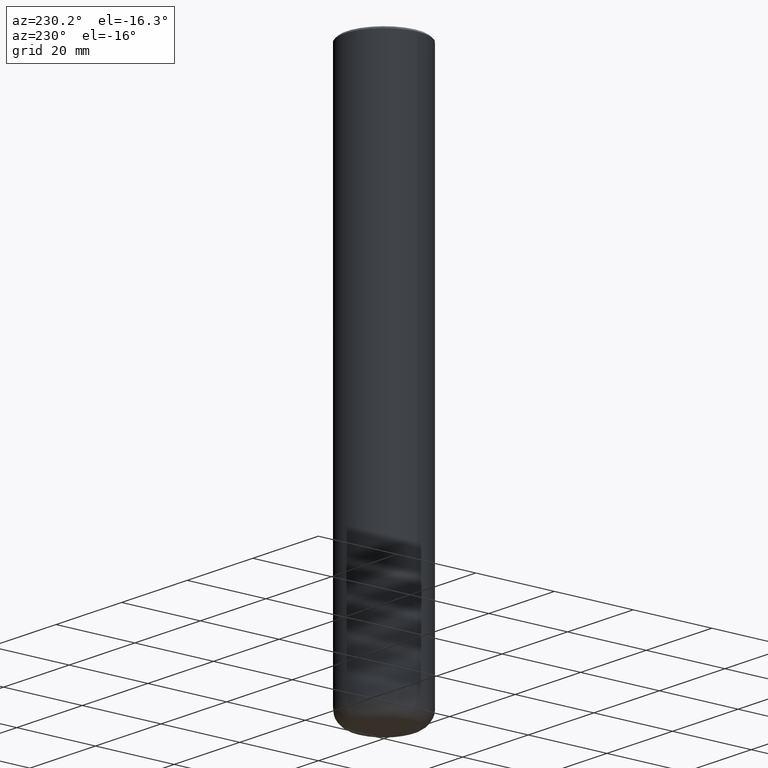
[diagram: clean part render]
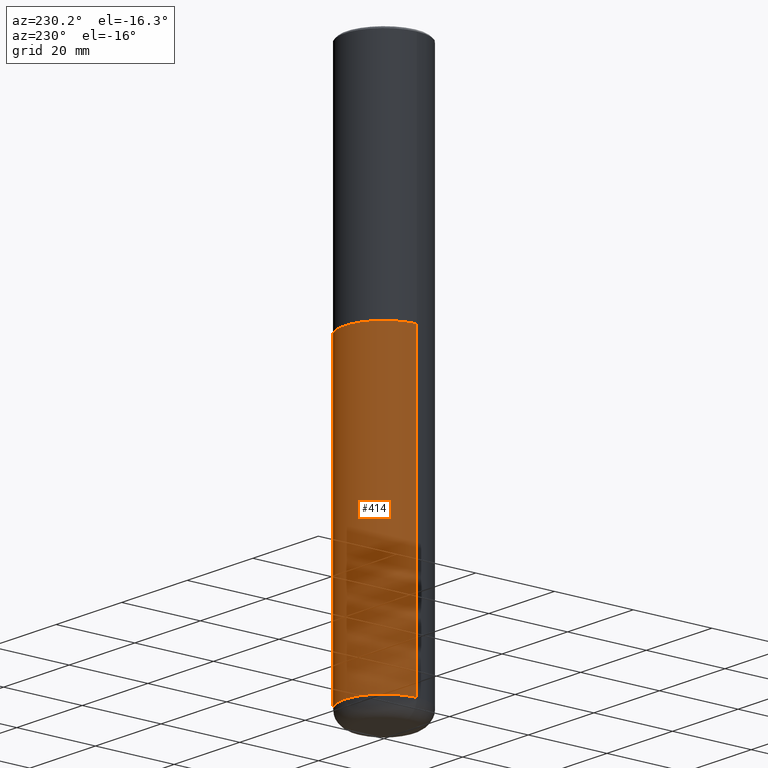
[diagram: same view with one face highlighted and labeled with its STEP entity id]
A machine part, auxiliary view. The second image highlights one B-rep face of the part: STEP entity #414.
In plain terms, the highlighted cylindrical surface (partial cylindrical patch) has radius 10 mm, axis along (-0, 0, 1).
Its self-contained STEP definition (entity closure, byte-faithful):
#9 = VERTEX_POINT ( 'NONE', #107 ) ;
#23 = CARTESIAN_POINT ( 'NONE',  ( -0.3937000000000001054, 2.797406750687515181E-15, -1.936584745033357016E-29 ) ) ;
#27 = CARTESIAN_POINT ( 'NONE',  ( 5.776686413970529753E-29, -8.247577218615279626E-15, -2.362200000000000077 ) ) ;
#28 = EDGE_CURVE ( 'NONE', #9, #357, #294, .T. ) ;
#34 = EDGE_LOOP ( 'NONE', ( #251, #330, #381, #363 ) ) ;
#39 = DIRECTION ( 'NONE',  ( -2.445468806185136877E-29, 3.491481338843145188E-15, 1.000000000000000000 ) ) ;
#48 = AXIS2_PLACEMENT_3D ( 'NONE', #145, #147, #348 ) ;
#94 = DIRECTION ( 'NONE',  ( -2.445468806185136597E-29, 3.491481338843145583E-15, 1.000000000000000000 ) ) ;
#107 = CARTESIAN_POINT ( 'NONE',  ( 0.3936999999999999389, -2.144363093877293707E-14, -5.354300000000000281 ) ) ;
#109 = AXIS2_PLACEMENT_3D ( 'NONE', #27, #155, #216 ) ;
#118 = LINE ( 'NONE', #23, #337 ) ;
#120 = DIRECTION ( 'NONE',  ( -2.445468806185136877E-29, 3.491481338843145188E-15, 1.000000000000000000 ) ) ;
#125 = CARTESIAN_POINT ( 'NONE',  ( -0.3936999999999999389, -1.589703178188033670E-14, -5.354300000000000281 ) ) ;
#134 = VERTEX_POINT ( 'NONE', #214 ) ;
#145 = CARTESIAN_POINT ( 'NONE',  ( 1.309377362895707575E-28, -1.869443853256785386E-14, -5.354300000000000281 ) ) ;
#146 = EDGE_CURVE ( 'NONE', #350, #134, #118, .T. ) ;
#147 = DIRECTION ( 'NONE',  ( -2.445468806185136597E-29, 3.491481338843145583E-15, 1.000000000000000000 ) ) ;
#154 = EDGE_CURVE ( 'NONE', #9, #350, #243, .T. ) ;
#155 = DIRECTION ( 'NONE',  ( -2.445468806185136597E-29, 3.491481338843145583E-15, 1.000000000000000000 ) ) ;
#204 = CARTESIAN_POINT ( 'NONE',  ( 0.3937000000000001054, -2.749192406205084005E-15, 1.919750796630860452E-29 ) ) ;
#214 = CARTESIAN_POINT ( 'NONE',  ( -0.3937000000000000499, -1.067360112490405038E-14, -2.362200000000000077 ) ) ;
#216 = DIRECTION ( 'NONE',  ( 1.000000000000000000, -6.982962677686267499E-15, 0.000000000000000000 ) ) ;
#243 = CIRCLE ( 'NONE', #48, 0.3937000000000001054 ) ;
#251 = ORIENTED_EDGE ( 'NONE', *, *, #154, .T. ) ;
#253 = CARTESIAN_POINT ( 'NONE',  ( 0.000000000000000000, 0.000000000000000000, 0.000000000000000000 ) ) ;
#283 = FACE_OUTER_BOUND ( 'NONE', #34, .T. ) ;
#286 = CIRCLE ( 'NONE', #109, 0.3937000000000000499 ) ;
#287 = DIRECTION ( 'NONE',  ( 1.000000000000000000, -6.982962677686266711E-15, 4.876176775795935793E-29 ) ) ;
#294 = LINE ( 'NONE', #204, #300 ) ;
#300 = VECTOR ( 'NONE', #39, 39.37007874015748143 ) ;
#330 = ORIENTED_EDGE ( 'NONE', *, *, #146, .T. ) ;
#337 = VECTOR ( 'NONE', #120, 39.37007874015748143 ) ;
#346 = AXIS2_PLACEMENT_3D ( 'NONE', #253, #94, #287 ) ;
#348 = DIRECTION ( 'NONE',  ( 1.000000000000000000, -6.982962677686266711E-15, 0.000000000000000000 ) ) ;
#350 = VERTEX_POINT ( 'NONE', #125 ) ;
#356 = CARTESIAN_POINT ( 'NONE',  ( 0.3937000000000000499, -1.099676962482036284E-14, -2.362200000000000077 ) ) ;
#357 = VERTEX_POINT ( 'NONE', #356 ) ;
#363 = ORIENTED_EDGE ( 'NONE', *, *, #28, .F. ) ;
#371 = EDGE_CURVE ( 'NONE', #357, #134, #286, .T. ) ;
#381 = ORIENTED_EDGE ( 'NONE', *, *, #371, .F. ) ;
#414 = ADVANCED_FACE ( 'NONE', ( #283 ), #418, .T. ) ;
#418 = CYLINDRICAL_SURFACE ( 'NONE', #346, 0.3937000000000001054 ) ;